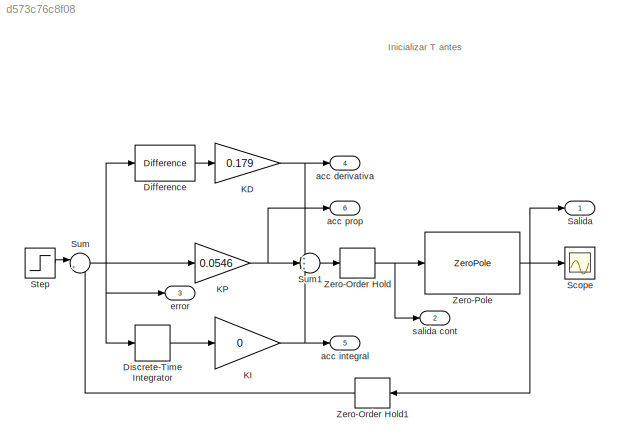
MODEL slx_d573c76c8f08
KIND model
CONFIG AbsTol = auto
CONFIG EnableMultiTasking = on
CONFIG FixedStep = auto
CONFIG MaxStep = 1e-5
CONFIG MinStep = auto
CONFIG RelTol = 1e-3
CONFIG SampleTimeConstraint = Unconstrained
CONFIG SolverName = ode45
CONFIG StartTime = 0.0
CONFIG StopTime = 10
BLOCK [Reference] Difference  REF=simulink/Discrete/Difference
  SourceBlock = simulink/Discrete/Difference
  SourceType = Difference
BLOCK [DiscreteIntegrator] Discrete-Time Integrator
  ICPrevOutput = DiscIntNeverNeededParam
  ICPrevScaledInput = DiscIntNeverNeededParam
  IntegratorMethod = Accumulation: Forward Euler
  SampleTime = -1
BLOCK [Gain] KD
  Gain = 0.179
BLOCK [Gain] KI
  Gain = 0
BLOCK [Gain] KP
  Gain = 0.0546
BLOCK [Outport] Salida
BLOCK [Scope] Scope
  ActiveDisplayYMaximum = 1.4023714315386666
  ActiveDisplayYMinimum = -0.080078592394486225
  DataLoggingDecimateData = on
  DataLoggingDecimation = 1
  DataLoggingSaveFormat = Structure With Time
  Floating = off
  GraphicalSettings = {"Style":{"BackgroundColor":[0.4980392156862745,0.4980392156862745,0.4980392156862745],"AxesColor":[0,0,0],"LabelsColor":[1,1,1],"PreserveColors":false,"Visible":[true],"LineStyle":["-"],"LineWidth":[0.5],"BarWidth":[0.9],"LineColor":[[1,1,0]],"LineFaceAlpha":[1],"LineEdgeAlpha":[1],"Marker":["none"],"FontSize":8.5,"LineTrueColor":[[1,1,0]],"ChannelNames":"","DefaultLegendLabel":["Zero-Pole"],"Plo...<+2201ch>
  LayoutDimensionsString = [1 1]
  MultipleDisplayCache = [{"MaxYLimMag":1.0014994664988153,"MaxYLimReal":1.4023714315386666,"MinYLimMag":0.99817065655363657,"MinYLimReal":-0.080078592394486225,"PlotAsMagnitudePhase":false,"ShowGrid":true,"ShowLegend":false,"Title":"%<SignalLabel>","YLabel":""}]
  NumInputPorts = 1
  ScopeFrameLocation = window
  WasSavedAsWebScope = on
  WindowPosition = [67.000000,38.000000,927.000000,1003.000000,]
BLOCK [Step] Step
  SampleTime = .22
  Time = 0
BLOCK [Sum] Sum
  Inputs = |+-
BLOCK [Sum] Sum1
  Inputs = +++
BLOCK [ZeroOrderHold] Zero-Order Hold
  SampleTime = .22
BLOCK [ZeroOrderHold] Zero-Order Hold1
  NameLocation = top
  SampleTime = .22
BLOCK [ZeroPole] Zero-Pole
  Gain = [5]
  Poles = [0 0]
  Zeros = [-10]
BLOCK [Outport] acc derivativa
  Port = 4
BLOCK [Outport] acc integral
  Port = 5
BLOCK [Outport] acc prop
  Port = 6
BLOCK [Outport] error
  Port = 3
BLOCK [Outport] salida cont
  Port = 2
ANNOTATION (root): Inicializar T antes
LINE Difference:1 -> KD:1
LINE Discrete-Time Integrator:1 -> KI:1
NET KD:1 -> Sum1:1, acc derivativa:1
NET KI:1 -> Sum1:3, acc integral:1
NET KP:1 -> Sum1:2, acc prop:1
LINE Step:1 -> Sum:1
LINE Sum1:1 -> Zero-Order Hold:1
NET Sum:1 -> Difference:1, Discrete-Time Integrator:1, KP:1, error:1
LINE Zero-Order Hold1:1 -> Sum:2
NET Zero-Order Hold:1 -> Zero-Pole:1, salida cont:1
NET Zero-Pole:1 -> Salida:1, Scope:1, Zero-Order Hold1:1
note: NET lines group one-source signal fan-out (src -> all destinations, sorted); 1:1 wires keep LINE
